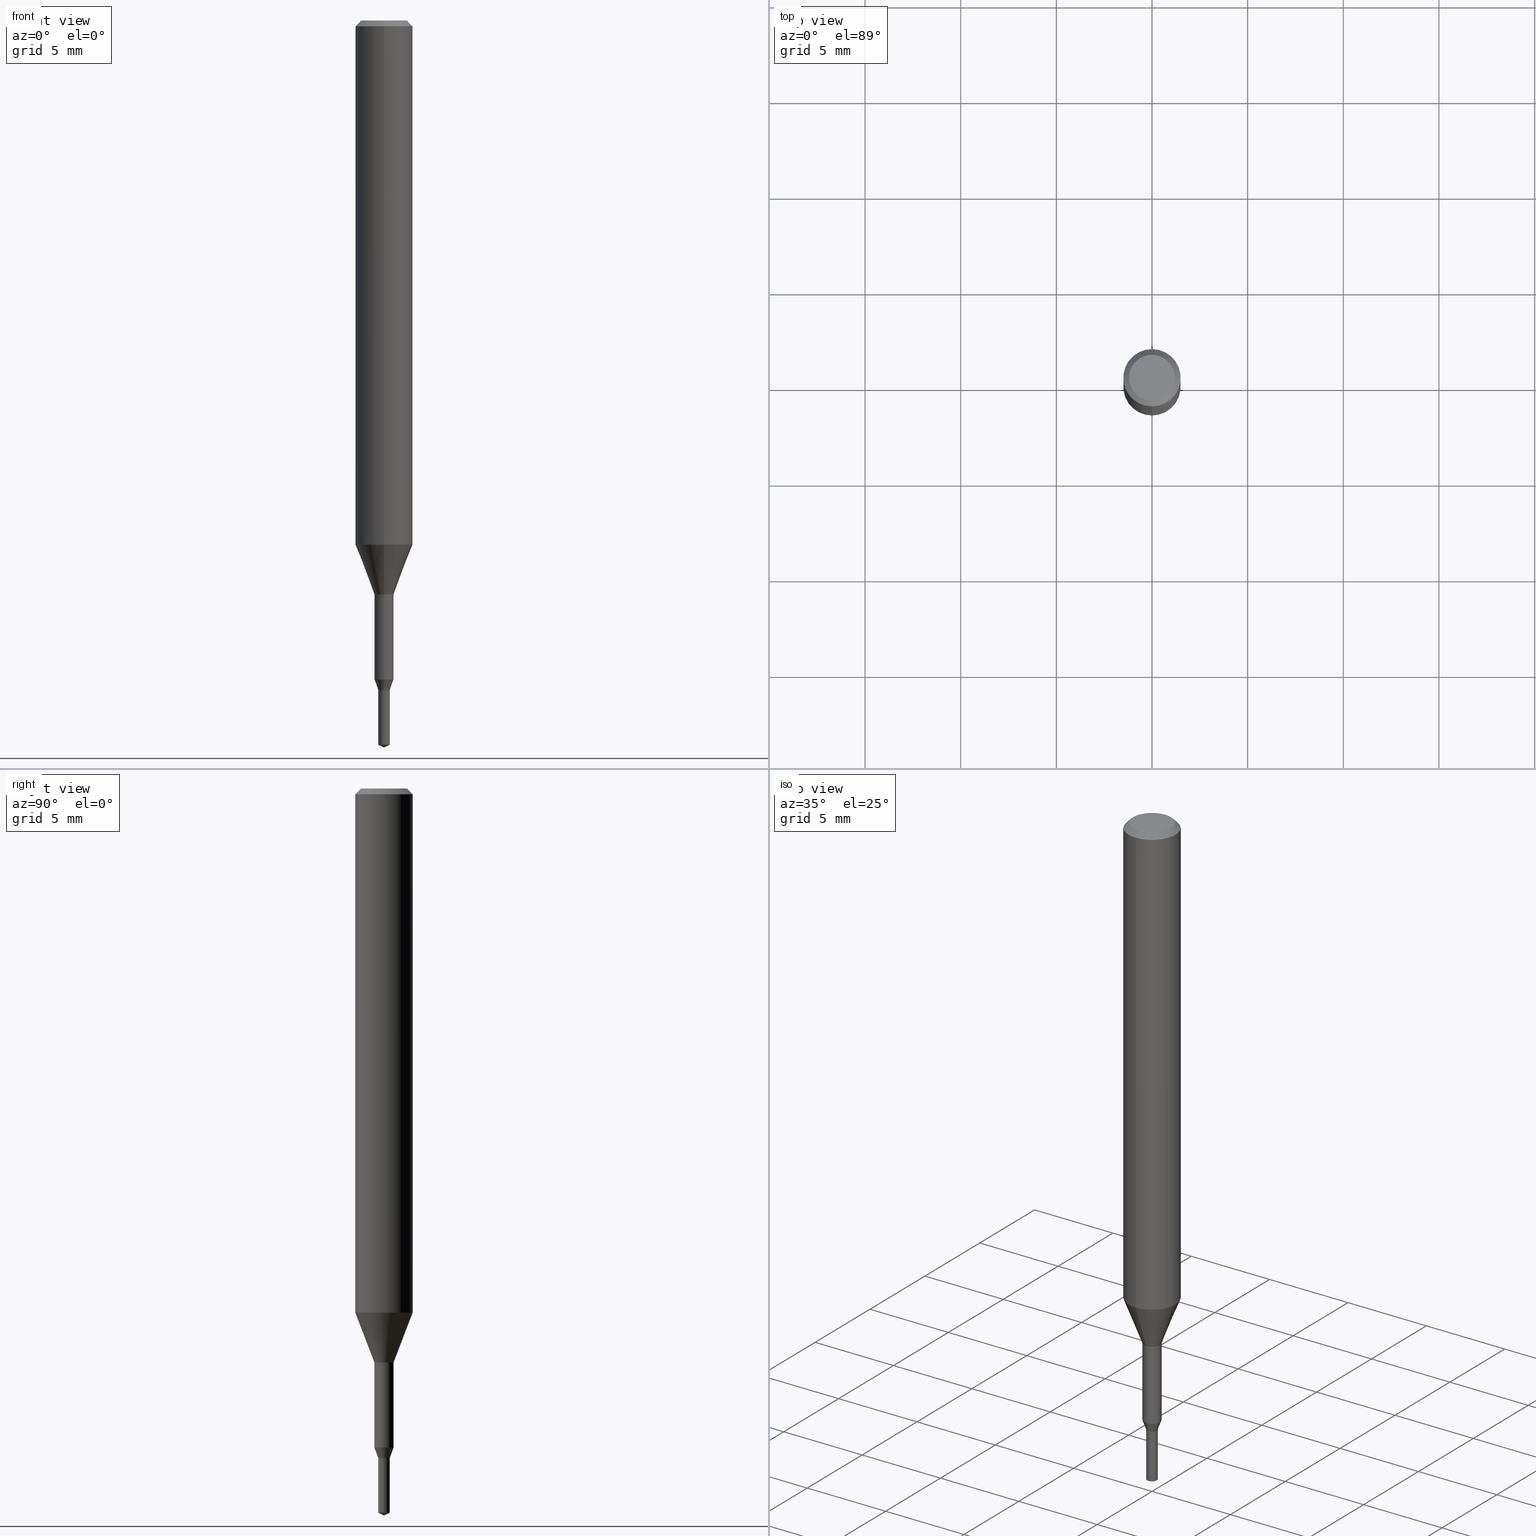
[diagram: canonical four-view strip — front | top / right | iso, engineering-drawing reading convention]
A machine part, canonical four-view strip (front | top / right | iso — engineering-drawing reading convention). The complete STEP part file that produces these views, byte-faithful:
ISO-10303-21;
HEADER;
FILE_DESCRIPTION(('no description'),'unknown implementation level');
FILE_NAME('UTDSX2060-030-Huellk.stp','  ',('CIMSOURCE GmbH'),('CADClick - KiM GmbH - www.kimweb.de'),'unknown preprocess','ACIS','unknown authorization');
FILE_SCHEMA(('automotive_design'));
ENDSEC;
DATA;
#1=MECHANICAL_DESIGN_GEOMETRIC_PRESENTATION_REPRESENTATION(' ',(#14,#15,#16,#17,#18,#19,#20,#21,#22,#23,#24,#25,#26,#27,#28,#29,#30,#31,#32,#33,#34,#35,#36,#37,#38,#39,#40,#41,#42,#43,#44,#45,#46,#47,#48,#49,#50,#51,#52,#53,#54,#55,#56,#57,#58,#59,#60,#61,#62,#63,#64,#65,#66,#67,#68,#69,#70,#71,#72,#73,#74,#75,#76,#77,#78,#79,#80,#81,#82,#83,#84,#85,#86,#87,#88,#89,#90,#91,#92),#10);
#2=PRODUCT_DEFINITION_CONTEXT('',#93,'design');
#3=APPLICATION_PROTOCOL_DEFINITION('INTERNATIONAL STANDARD','automotive_design',1994,#93);
#4=PRODUCT_CATEGORY_RELATIONSHIP('NONE','NONE',#94,#95);
#5=SHAPE_DEFINITION_REPRESENTATION(#96,#97);
#6=PRODUCT_DEFINITION_CONTEXT('',#98,'design');
#7=APPLICATION_PROTOCOL_DEFINITION('INTERNATIONAL STANDARD','automotive_design',1994,#98);
#8=PRODUCT_CATEGORY_RELATIONSHIP('NONE','NONE',#99,#100);
#9=SHAPE_DEFINITION_REPRESENTATION(#101,#102);
#10= (GEOMETRIC_REPRESENTATION_CONTEXT(3)GLOBAL_UNCERTAINTY_ASSIGNED_CONTEXT((#105))GLOBAL_UNIT_ASSIGNED_CONTEXT((#107,#108,#109))REPRESENTATION_CONTEXT('NONE','WORKSPACE'));
#14=STYLED_ITEM('',(#111),#112);
#15=STYLED_ITEM('',(#113),#114);
#16=STYLED_ITEM('',(#115),#116);
#17=STYLED_ITEM('',(#117),#118);
#18=STYLED_ITEM('',(#119),#120);
#19=STYLED_ITEM('',(#121),#122);
#20=STYLED_ITEM('',(#123),#124);
#21=STYLED_ITEM('',(#125),#126);
#22=STYLED_ITEM('',(#127),#128);
#23=STYLED_ITEM('',(#129),#130);
#24=STYLED_ITEM('',(#131),#132);
#25=STYLED_ITEM('',(#133),#134);
#26=STYLED_ITEM('',(#135),#136);
#27=STYLED_ITEM('',(#137),#138);
#28=STYLED_ITEM('',(#139),#140);
#29=STYLED_ITEM('',(#141),#142);
#30=STYLED_ITEM('',(#143),#144);
#31=STYLED_ITEM('',(#145),#146);
#32=STYLED_ITEM('',(#147),#148);
#33=STYLED_ITEM('',(#149),#150);
#34=STYLED_ITEM('',(#151),#152);
#35=STYLED_ITEM('',(#153),#154);
#36=STYLED_ITEM('',(#155),#156);
#37=STYLED_ITEM('',(#157),#158);
#38=STYLED_ITEM('',(#159),#160);
#39=STYLED_ITEM('',(#161),#162);
#40=STYLED_ITEM('',(#163),#164);
#41=STYLED_ITEM('',(#165),#166);
#42=STYLED_ITEM('',(#167),#168);
#43=STYLED_ITEM('',(#169),#170);
#44=STYLED_ITEM('',(#171),#172);
#45=STYLED_ITEM('',(#173),#174);
#46=STYLED_ITEM('',(#175),#176);
#47=STYLED_ITEM('',(#177),#178);
#48=STYLED_ITEM('',(#179),#180);
#49=STYLED_ITEM('',(#181),#182);
#50=STYLED_ITEM('',(#183),#184);
#51=STYLED_ITEM('',(#185),#186);
#52=STYLED_ITEM('',(#187),#188);
#53=STYLED_ITEM('',(#189),#190);
#54=STYLED_ITEM('',(#191),#192);
#55=STYLED_ITEM('',(#193),#194);
#56=STYLED_ITEM('',(#195),#196);
#57=STYLED_ITEM('',(#197),#198);
#58=STYLED_ITEM('',(#199),#200);
#59=STYLED_ITEM('',(#201),#202);
#60=STYLED_ITEM('',(#203),#204);
#61=STYLED_ITEM('',(#205),#206);
#62=STYLED_ITEM('',(#207),#208);
#63=STYLED_ITEM('',(#209),#210);
#64=STYLED_ITEM('',(#211),#212);
#65=STYLED_ITEM('',(#213),#214);
#66=STYLED_ITEM('',(#215),#216);
#67=STYLED_ITEM('',(#217),#218);
#68=STYLED_ITEM('',(#219),#220);
#69=STYLED_ITEM('',(#221),#222);
#70=STYLED_ITEM('',(#223),#224);
#71=STYLED_ITEM('',(#225),#226);
#72=STYLED_ITEM('',(#227),#228);
#73=STYLED_ITEM('',(#229),#230);
#74=STYLED_ITEM('',(#231),#232);
#75=STYLED_ITEM('',(#233),#234);
#76=STYLED_ITEM('',(#235),#236);
#77=STYLED_ITEM('',(#237),#238);
#78=STYLED_ITEM('',(#239),#240);
#79=STYLED_ITEM('',(#241),#242);
#80=STYLED_ITEM('',(#243),#244);
#81=STYLED_ITEM('',(#245),#246);
#82=STYLED_ITEM('',(#247),#248);
#83=STYLED_ITEM('',(#249),#250);
#84=STYLED_ITEM('',(#251),#252);
#85=STYLED_ITEM('',(#253),#254);
#86=STYLED_ITEM('',(#255),#256);
#87=STYLED_ITEM('',(#257),#258);
#88=STYLED_ITEM('',(#259),#260);
#89=STYLED_ITEM('',(#261),#262);
#90=STYLED_ITEM('',(#263),#264);
#91=STYLED_ITEM('',(#265),#266);
#92=STYLED_ITEM('',(#267),#268);
#93=APPLICATION_CONTEXT(' ');
#94=PRODUCT_CATEGORY('part','NONE');
#95=PRODUCT_RELATED_PRODUCT_CATEGORY('detail',' ',(#269));
#96=PRODUCT_DEFINITION_SHAPE('NONE','NONE',#270);
#97=ADVANCED_BREP_SHAPE_REPRESENTATION('1',(#190,#271),#10);
#98=APPLICATION_CONTEXT(' ');
#99=PRODUCT_CATEGORY('part','NONE');
#100=PRODUCT_RELATED_PRODUCT_CATEGORY('detail',' ',(#272));
#101=PRODUCT_DEFINITION_SHAPE('NONE','NONE',#273);
#102=ADVANCED_BREP_SHAPE_REPRESENTATION('2',(#268,#274),#10);
#105=UNCERTAINTY_MEASURE_WITH_UNIT(LENGTH_MEASURE(1.0E-006),#107,'','');
#107= (CONVERSION_BASED_UNIT('MILLIMETRE',#277)LENGTH_UNIT()NAMED_UNIT(#280));
#108= (NAMED_UNIT(#282)PLANE_ANGLE_UNIT()SI_UNIT($,.RADIAN.));
#109= (NAMED_UNIT(#282)SOLID_ANGLE_UNIT()SI_UNIT($,.STERADIAN.));
#111=PRESENTATION_STYLE_ASSIGNMENT((#288));
#112=ADVANCED_FACE('',(#289),#290,.T.);
#113=PRESENTATION_STYLE_ASSIGNMENT((#291));
#114=EDGE_CURVE('',#172,#206,#292,.T.);
#115=PRESENTATION_STYLE_ASSIGNMENT((#293));
#116=ADVANCED_FACE('',(#294),#295,.T.);
#117=PRESENTATION_STYLE_ASSIGNMENT((#296));
#118=EDGE_CURVE('',#138,#244,#297,.T.);
#119=PRESENTATION_STYLE_ASSIGNMENT((#298));
#120=ADVANCED_FACE('',(#299),#300,.T.);
#121=PRESENTATION_STYLE_ASSIGNMENT((#301));
#122=EDGE_CURVE('',#242,#158,#302,.T.);
#123=PRESENTATION_STYLE_ASSIGNMENT((#303));
#124=EDGE_CURVE('',#206,#166,#304,.T.);
#125=PRESENTATION_STYLE_ASSIGNMENT((#305));
#126=VERTEX_POINT('',#306);
#127=PRESENTATION_STYLE_ASSIGNMENT((#307));
#128=EDGE_CURVE('',#132,#172,#308,.T.);
#129=PRESENTATION_STYLE_ASSIGNMENT((#309));
#130=EDGE_CURVE('',#200,#258,#310,.T.);
#131=PRESENTATION_STYLE_ASSIGNMENT((#311));
#132=VERTEX_POINT('',#312);
#133=PRESENTATION_STYLE_ASSIGNMENT((#313));
#134=ADVANCED_FACE('',(#314),#315,.T.);
#135=PRESENTATION_STYLE_ASSIGNMENT((#316));
#136=EDGE_CURVE('',#206,#172,#317,.T.);
#137=PRESENTATION_STYLE_ASSIGNMENT((#318));
#138=VERTEX_POINT('',#319);
#139=PRESENTATION_STYLE_ASSIGNMENT((#320));
#140=VERTEX_POINT('',#321);
#141=PRESENTATION_STYLE_ASSIGNMENT((#322));
#142=EDGE_CURVE('',#214,#252,#323,.T.);
#143=PRESENTATION_STYLE_ASSIGNMENT((#324));
#144=EDGE_CURVE('',#214,#198,#325,.T.);
#145=PRESENTATION_STYLE_ASSIGNMENT((#326));
#146=EDGE_CURVE('',#172,#138,#327,.T.);
#147=PRESENTATION_STYLE_ASSIGNMENT((#328));
#148=EDGE_CURVE('',#182,#258,#329,.T.);
#149=PRESENTATION_STYLE_ASSIGNMENT((#330));
#150=ADVANCED_FACE('',(#331),#332,.T.);
#151=PRESENTATION_STYLE_ASSIGNMENT((#333));
#152=EDGE_CURVE('',#252,#238,#334,.T.);
#153=PRESENTATION_STYLE_ASSIGNMENT((#335));
#154=VERTEX_POINT('',#336);
#155=PRESENTATION_STYLE_ASSIGNMENT((#337));
#156=EDGE_CURVE('',#126,#200,#338,.T.);
#157=PRESENTATION_STYLE_ASSIGNMENT((#339));
#158=VERTEX_POINT('',#340);
#159=PRESENTATION_STYLE_ASSIGNMENT((#341));
#160=ADVANCED_FACE('',(#342),#343,.T.);
#161=PRESENTATION_STYLE_ASSIGNMENT((#344));
#162=EDGE_CURVE('',#198,#154,#345,.T.);
#163=PRESENTATION_STYLE_ASSIGNMENT((#346));
#164=EDGE_CURVE('',#192,#214,#347,.T.);
#165=PRESENTATION_STYLE_ASSIGNMENT((#348));
#166=VERTEX_POINT('',#349);
#167=PRESENTATION_STYLE_ASSIGNMENT((#350));
#168=EDGE_CURVE('',#154,#192,#351,.T.);
#169=PRESENTATION_STYLE_ASSIGNMENT((#352));
#170=ADVANCED_FACE('',(#353),#354,.T.);
#171=PRESENTATION_STYLE_ASSIGNMENT((#355));
#172=VERTEX_POINT('',#356);
#173=PRESENTATION_STYLE_ASSIGNMENT((#357));
#174=EDGE_CURVE('',#154,#140,#358,.T.);
#175=PRESENTATION_STYLE_ASSIGNMENT((#359));
#176=VERTEX_POINT('',#360);
#177=PRESENTATION_STYLE_ASSIGNMENT((#361));
#178=ADVANCED_FACE('',(#362),#363,.T.);
#179=PRESENTATION_STYLE_ASSIGNMENT((#364));
#180=ADVANCED_FACE('',(#365),#366,.T.);
#181=PRESENTATION_STYLE_ASSIGNMENT((#367));
#182=VERTEX_POINT('',#368);
#183=PRESENTATION_STYLE_ASSIGNMENT((#369));
#184=VERTEX_POINT('',#370);
#185=PRESENTATION_STYLE_ASSIGNMENT((#371));
#186=EDGE_CURVE('',#238,#198,#372,.T.);
#187=PRESENTATION_STYLE_ASSIGNMENT((#373));
#188=EDGE_CURVE('',#166,#132,#374,.T.);
#189=PRESENTATION_STYLE_ASSIGNMENT((#375));
#190=MANIFOLD_SOLID_BREP('1',#376);
#191=PRESENTATION_STYLE_ASSIGNMENT((#377));
#192=VERTEX_POINT('',#378);
#193=PRESENTATION_STYLE_ASSIGNMENT((#379));
#194=ADVANCED_FACE('',(#380),#381,.T.);
#195=PRESENTATION_STYLE_ASSIGNMENT((#382));
#196=EDGE_CURVE('',#126,#176,#383,.T.);
#197=PRESENTATION_STYLE_ASSIGNMENT((#384));
#198=VERTEX_POINT('',#385);
#199=PRESENTATION_STYLE_ASSIGNMENT((#386));
#200=VERTEX_POINT('',#387);
#201=PRESENTATION_STYLE_ASSIGNMENT((#388));
#202=ADVANCED_FACE('',(#389),#390,.T.);
#203=PRESENTATION_STYLE_ASSIGNMENT((#391));
#204=EDGE_CURVE('',#176,#126,#392,.T.);
#205=PRESENTATION_STYLE_ASSIGNMENT((#393));
#206=VERTEX_POINT('',#394);
#207=PRESENTATION_STYLE_ASSIGNMENT((#395));
#208=ADVANCED_FACE('',(#396),#397,.T.);
#209=PRESENTATION_STYLE_ASSIGNMENT((#398));
#210=EDGE_CURVE('',#244,#138,#399,.T.);
#211=PRESENTATION_STYLE_ASSIGNMENT((#400));
#212=EDGE_CURVE('',#140,#192,#401,.T.);
#213=PRESENTATION_STYLE_ASSIGNMENT((#402));
#214=VERTEX_POINT('',#403);
#215=PRESENTATION_STYLE_ASSIGNMENT((#404));
#216=ADVANCED_FACE('',(#405),#406,.T.);
#217=PRESENTATION_STYLE_ASSIGNMENT((#407));
#218=ADVANCED_FACE('',(#408),#409,.T.);
#219=PRESENTATION_STYLE_ASSIGNMENT((#410));
#220=EDGE_CURVE('',#184,#176,#411,.T.);
#221=PRESENTATION_STYLE_ASSIGNMENT((#412));
#222=EDGE_CURVE('',#184,#200,#413,.T.);
#223=PRESENTATION_STYLE_ASSIGNMENT((#414));
#224=EDGE_CURVE('',#258,#158,#415,.T.);
#225=PRESENTATION_STYLE_ASSIGNMENT((#416));
#226=EDGE_CURVE('',#182,#184,#417,.T.);
#227=PRESENTATION_STYLE_ASSIGNMENT((#418));
#228=EDGE_CURVE('',#198,#214,#419,.T.);
#229=PRESENTATION_STYLE_ASSIGNMENT((#420));
#230=EDGE_CURVE('',#238,#252,#421,.T.);
#231=PRESENTATION_STYLE_ASSIGNMENT((#422));
#232=EDGE_CURVE('',#200,#184,#423,.T.);
#233=PRESENTATION_STYLE_ASSIGNMENT((#424));
#234=ADVANCED_FACE('',(#425),#426,.T.);
#235=PRESENTATION_STYLE_ASSIGNMENT((#427));
#236=EDGE_CURVE('',#242,#182,#428,.T.);
#237=PRESENTATION_STYLE_ASSIGNMENT((#429));
#238=VERTEX_POINT('',#430);
#239=PRESENTATION_STYLE_ASSIGNMENT((#431));
#240=EDGE_CURVE('',#244,#206,#432,.T.);
#241=PRESENTATION_STYLE_ASSIGNMENT((#433));
#242=VERTEX_POINT('',#434);
#243=PRESENTATION_STYLE_ASSIGNMENT((#435));
#244=VERTEX_POINT('',#436);
#245=PRESENTATION_STYLE_ASSIGNMENT((#437));
#246=EDGE_CURVE('',#158,#242,#438,.T.);
#247=PRESENTATION_STYLE_ASSIGNMENT((#439));
#248=EDGE_CURVE('',#258,#182,#440,.T.);
#249=PRESENTATION_STYLE_ASSIGNMENT((#441));
#250=EDGE_CURVE('',#132,#166,#442,.T.);
#251=PRESENTATION_STYLE_ASSIGNMENT((#443));
#252=VERTEX_POINT('',#444);
#253=PRESENTATION_STYLE_ASSIGNMENT((#445));
#254=ADVANCED_FACE('',(#446),#447,.T.);
#255=PRESENTATION_STYLE_ASSIGNMENT((#448));
#256=ADVANCED_FACE('',(#449,#450),#451,.T.);
#257=PRESENTATION_STYLE_ASSIGNMENT((#452));
#258=VERTEX_POINT('',#453);
#259=PRESENTATION_STYLE_ASSIGNMENT((#454));
#260=ADVANCED_FACE('',(#455),#456,.T.);
#261=PRESENTATION_STYLE_ASSIGNMENT((#457));
#262=ADVANCED_FACE('',(#458),#459,.T.);
#263=PRESENTATION_STYLE_ASSIGNMENT((#460));
#264=EDGE_CURVE('',#192,#154,#461,.T.);
#265=PRESENTATION_STYLE_ASSIGNMENT((#462));
#266=ADVANCED_FACE('',(#463),#464,.T.);
#267=PRESENTATION_STYLE_ASSIGNMENT((#465));
#268=MANIFOLD_SOLID_BREP('2',#466);
#269=PRODUCT('1','1','PART-1-DESC',(#467));
#270=PRODUCT_DEFINITION('NONE','NONE',#468,#2);
#271=AXIS2_PLACEMENT_3D('',#469,#470,#471);
#272=PRODUCT('2','2','PART-2-DESC',(#472));
#273=PRODUCT_DEFINITION('NONE','NONE',#473,#6);
#274=AXIS2_PLACEMENT_3D('',#474,#475,#476);
#277=LENGTH_MEASURE_WITH_UNIT(LENGTH_MEASURE(1.0),#477);
#280=DIMENSIONAL_EXPONENTS(1.0,0.0,0.0,0.0,0.0,0.0,0.0);
#282=DIMENSIONAL_EXPONENTS(0.0,0.0,0.0,0.0,0.0,0.0,0.0);
#288=SURFACE_STYLE_USAGE(.BOTH.,#478);
#289=FACE_OUTER_BOUND('',#479,.T.);
#290=CONICAL_SURFACE('',#480,1.35,0.785398163397447);
#291=CURVE_STYLE('',#481,POSITIVE_LENGTH_MEASURE(1.0E-006),#482);
#292=CIRCLE('',#483,0.49995);
#293=SURFACE_STYLE_USAGE(.BOTH.,#484);
#294=FACE_OUTER_BOUND('',#485,.T.);
#295=CONICAL_SURFACE('',#486,1.35,0.785398163397447);
#296=CURVE_STYLE('',#487,POSITIVE_LENGTH_MEASURE(1.0E-006),#488);
#297=CIRCLE('',#489,0.49995);
#298=SURFACE_STYLE_USAGE(.BOTH.,#490);
#299=FACE_OUTER_BOUND('',#491,.T.);
#300=CYLINDRICAL_SURFACE('',#492,0.3);
#301=CURVE_STYLE('',#493,POSITIVE_LENGTH_MEASURE(1.0E-006),#494);
#302=CIRCLE('',#495,1.2);
#303=CURVE_STYLE('',#496,POSITIVE_LENGTH_MEASURE(1.0E-006),#497);
#304=LINE('',#498,#499);
#305=POINT_STYLE(' ',#500,POSITIVE_LENGTH_MEASURE(1.0E-006),#501);
#306=CARTESIAN_POINT('',(6.12303176911189E-017,-0.5,-30.0));
#307=CURVE_STYLE('',#502,POSITIVE_LENGTH_MEASURE(1.0E-006),#503);
#308=LINE('',#504,#505);
#309=CURVE_STYLE('',#506,POSITIVE_LENGTH_MEASURE(1.0E-006),#507);
#310=LINE('',#508,#509);
#311=POINT_STYLE(' ',#510,POSITIVE_LENGTH_MEASURE(1.0E-006),#511);
#312=CARTESIAN_POINT('',(3.67426507246977E-017,-0.300036420765027,-34.9999));
#313=SURFACE_STYLE_USAGE(.BOTH.,#512);
#314=FACE_OUTER_BOUND('',#513,.T.);
#315=PLANE('',#514);
#316=CURVE_STYLE('',#515,POSITIVE_LENGTH_MEASURE(1.0E-006),#516);
#317=CIRCLE('',#517,0.49995);
#318=POINT_STYLE(' ',#518,POSITIVE_LENGTH_MEASURE(1.0E-006),#519);
#319=CARTESIAN_POINT('',(6.12241946593498E-017,-0.49995,-30.0));
#320=POINT_STYLE(' ',#520,POSITIVE_LENGTH_MEASURE(1.0E-006),#521);
#321=CARTESIAN_POINT('',(0.0,0.0,-38.0));
#322=CURVE_STYLE('',#522,POSITIVE_LENGTH_MEASURE(1.0E-006),#523);
#323=LINE('',#524,#525);
#324=CURVE_STYLE('',#526,POSITIVE_LENGTH_MEASURE(1.0E-006),#527);
#325=CIRCLE('',#528,0.3);
#326=CURVE_STYLE('',#529,POSITIVE_LENGTH_MEASURE(1.0E-006),#530);
#327=LINE('',#531,#532);
#328=CURVE_STYLE('',#533,POSITIVE_LENGTH_MEASURE(1.0E-006),#534);
#329=CIRCLE('',#535,1.5);
#330=SURFACE_STYLE_USAGE(.BOTH.,#536);
#331=FACE_OUTER_BOUND('',#537,.T.);
#332=CONICAL_SURFACE('',#538,0.15,1.13446400680488);
#333=CURVE_STYLE('',#539,POSITIVE_LENGTH_MEASURE(1.0E-006),#540);
#334=CIRCLE('',#541,0.301036429872495);
#335=POINT_STYLE(' ',#542,POSITIVE_LENGTH_MEASURE(1.0E-006),#543);
#336=CARTESIAN_POINT('',(-0.3,0.0,-37.8601077));
#337=CURVE_STYLE('',#544,POSITIVE_LENGTH_MEASURE(1.0E-006),#545);
#338=LINE('',#546,#547);
#339=POINT_STYLE(' ',#548,POSITIVE_LENGTH_MEASURE(1.0E-006),#549);
#340=CARTESIAN_POINT('',(1.46952762458685E-016,-1.2,0.0));
#341=SURFACE_STYLE_USAGE(.BOTH.,#550);
#342=FACE_OUTER_BOUND('',#551,.T.);
#343=CYLINDRICAL_SURFACE('',#552,0.3);
#344=CURVE_STYLE('',#553,POSITIVE_LENGTH_MEASURE(1.0E-006),#554);
#345=LINE('',#555,#556);
#346=CURVE_STYLE('',#557,POSITIVE_LENGTH_MEASURE(1.0E-006),#558);
#347=LINE('',#559,#560);
#348=POINT_STYLE(' ',#561,POSITIVE_LENGTH_MEASURE(1.0E-006),#562);
#349=CARTESIAN_POINT('',(0.0,0.300036420765027,-34.9999));
#350=CURVE_STYLE('',#563,POSITIVE_LENGTH_MEASURE(1.0E-006),#564);
#351=CIRCLE('',#565,0.3);
#352=SURFACE_STYLE_USAGE(.BOTH.,#566);
#353=FACE_OUTER_BOUND('',#567,.T.);
#354=CONICAL_SURFACE('',#568,1.0,0.366530581623394);
#355=POINT_STYLE(' ',#569,POSITIVE_LENGTH_MEASURE(1.0E-006),#570);
#356=CARTESIAN_POINT('',(6.12241946593498E-017,-0.49995,-34.451));
#357=CURVE_STYLE('',#571,POSITIVE_LENGTH_MEASURE(1.0E-006),#572);
#358=LINE('',#573,#574);
#359=POINT_STYLE(' ',#575,POSITIVE_LENGTH_MEASURE(1.0E-006),#576);
#360=CARTESIAN_POINT('',(0.0,0.5,-30.0));
#361=SURFACE_STYLE_USAGE(.BOTH.,#577);
#362=FACE_OUTER_BOUND('',#578,.T.);
#363=CONICAL_SURFACE('',#579,0.300518214936248,1.47460900891413);
#364=SURFACE_STYLE_USAGE(.BOTH.,#580);
#365=FACE_OUTER_BOUND('',#581,.T.);
#366=CYLINDRICAL_SURFACE('',#582,1.5);
#367=POINT_STYLE(' ',#583,POSITIVE_LENGTH_MEASURE(1.0E-006),#584);
#368=CARTESIAN_POINT('',(0.0,1.5,-0.300000000000001));
#369=POINT_STYLE(' ',#585,POSITIVE_LENGTH_MEASURE(1.0E-006),#586);
#370=CARTESIAN_POINT('',(0.0,1.5,-27.395));
#371=CURVE_STYLE('',#587,POSITIVE_LENGTH_MEASURE(1.0E-006),#588);
#372=LINE('',#589,#590);
#373=CURVE_STYLE('',#591,POSITIVE_LENGTH_MEASURE(1.0E-006),#592);
#374=CIRCLE('',#593,0.300036420765027);
#375=SURFACE_STYLE_USAGE(.BOTH.,#594);
#376=CLOSED_SHELL('',(#234,#208,#254,#180,#112,#218,#116,#266,#170,#256,#262,#216,#134));
#377=POINT_STYLE(' ',#595,POSITIVE_LENGTH_MEASURE(1.0E-006),#596);
#378=CARTESIAN_POINT('',(0.3,3.67381906146713E-017,-37.8601077));
#379=SURFACE_STYLE_USAGE(.BOTH.,#597);
#380=FACE_OUTER_BOUND('',#598,.T.);
#381=PLANE('',#599);
#382=CURVE_STYLE('',#600,POSITIVE_LENGTH_MEASURE(1.0E-006),#601);
#383=CIRCLE('',#602,0.5);
#384=POINT_STYLE(' ',#603,POSITIVE_LENGTH_MEASURE(1.0E-006),#604);
#385=CARTESIAN_POINT('',(-0.3,0.0,-35.0));
#386=POINT_STYLE(' ',#605,POSITIVE_LENGTH_MEASURE(1.0E-006),#606);
#387=CARTESIAN_POINT('',(1.83690953073357E-016,-1.5,-27.395));
#388=SURFACE_STYLE_USAGE(.BOTH.,#607);
#389=FACE_OUTER_BOUND('',#608,.T.);
#390=CONICAL_SURFACE('',#609,0.15,1.13446400680488);
#391=CURVE_STYLE('',#610,POSITIVE_LENGTH_MEASURE(1.0E-006),#611);
#392=CIRCLE('',#612,0.5);
#393=POINT_STYLE(' ',#613,POSITIVE_LENGTH_MEASURE(1.0E-006),#614);
#394=CARTESIAN_POINT('',(0.0,0.49995,-34.451));
#395=SURFACE_STYLE_USAGE(.BOTH.,#615);
#396=FACE_OUTER_BOUND('',#616,.T.);
#397=CYLINDRICAL_SURFACE('',#617,0.49995);
#398=CURVE_STYLE('',#618,POSITIVE_LENGTH_MEASURE(1.0E-006),#619);
#399=CIRCLE('',#620,0.49995);
#400=CURVE_STYLE('',#621,POSITIVE_LENGTH_MEASURE(1.0E-006),#622);
#401=LINE('',#623,#624);
#402=POINT_STYLE(' ',#625,POSITIVE_LENGTH_MEASURE(1.0E-006),#626);
#403=CARTESIAN_POINT('',(0.3,3.67381906146713E-017,-35.0));
#404=SURFACE_STYLE_USAGE(.BOTH.,#627);
#405=FACE_OUTER_BOUND('',#628,.T.);
#406=CONICAL_SURFACE('',#629,0.399993210382514,0.349275478010317);
#407=SURFACE_STYLE_USAGE(.BOTH.,#630);
#408=FACE_OUTER_BOUND('',#631,.T.);
#409=PLANE('',#632);
#410=CURVE_STYLE('',#633,POSITIVE_LENGTH_MEASURE(1.0E-006),#634);
#411=LINE('',#635,#636);
#412=CURVE_STYLE('',#637,POSITIVE_LENGTH_MEASURE(1.0E-006),#638);
#413=CIRCLE('',#639,1.5);
#414=CURVE_STYLE('',#640,POSITIVE_LENGTH_MEASURE(1.0E-006),#641);
#415=LINE('',#642,#643);
#416=CURVE_STYLE('',#644,POSITIVE_LENGTH_MEASURE(1.0E-006),#645);
#417=LINE('',#646,#647);
#418=CURVE_STYLE('',#648,POSITIVE_LENGTH_MEASURE(1.0E-006),#649);
#419=CIRCLE('',#650,0.3);
#420=CURVE_STYLE('',#651,POSITIVE_LENGTH_MEASURE(1.0E-006),#652);
#421=CIRCLE('',#653,0.301036429872495);
#422=CURVE_STYLE('',#654,POSITIVE_LENGTH_MEASURE(1.0E-006),#655);
#423=CIRCLE('',#656,1.5);
#424=SURFACE_STYLE_USAGE(.BOTH.,#657);
#425=FACE_OUTER_BOUND('',#658,.T.);
#426=CONICAL_SURFACE('',#659,0.399993210382514,0.349275478010317);
#427=CURVE_STYLE('',#660,POSITIVE_LENGTH_MEASURE(1.0E-006),#661);
#428=LINE('',#662,#663);
#429=POINT_STYLE(' ',#664,POSITIVE_LENGTH_MEASURE(1.0E-006),#665);
#430=CARTESIAN_POINT('',(-0.301036429872495,0.0,-34.9999));
#431=CURVE_STYLE('',#666,POSITIVE_LENGTH_MEASURE(1.0E-006),#667);
#432=LINE('',#668,#669);
#433=POINT_STYLE(' ',#670,POSITIVE_LENGTH_MEASURE(1.0E-006),#671);
#434=CARTESIAN_POINT('',(0.0,1.2,0.0));
#435=POINT_STYLE(' ',#672,POSITIVE_LENGTH_MEASURE(1.0E-006),#673);
#436=CARTESIAN_POINT('',(0.0,0.49995,-30.0));
#437=CURVE_STYLE('',#674,POSITIVE_LENGTH_MEASURE(1.0E-006),#675);
#438=CIRCLE('',#676,1.2);
#439=CURVE_STYLE('',#677,POSITIVE_LENGTH_MEASURE(1.0E-006),#678);
#440=CIRCLE('',#679,1.5);
#441=CURVE_STYLE('',#680,POSITIVE_LENGTH_MEASURE(1.0E-006),#681);
#442=CIRCLE('',#682,0.300036420765027);
#443=POINT_STYLE(' ',#683,POSITIVE_LENGTH_MEASURE(1.0E-006),#684);
#444=CARTESIAN_POINT('',(0.301036429872495,3.68651124753862E-017,-34.9999));
#445=SURFACE_STYLE_USAGE(.BOTH.,#685);
#446=FACE_OUTER_BOUND('',#686,.T.);
#447=CONICAL_SURFACE('',#687,1.0,0.366530581623394);
#448=SURFACE_STYLE_USAGE(.BOTH.,#688);
#449=FACE_BOUND('',#689,.T.);
#450=FACE_OUTER_BOUND('',#690,.T.);
#451=PLANE('',#691);
#452=POINT_STYLE(' ',#692,POSITIVE_LENGTH_MEASURE(1.0E-006),#693);
#453=CARTESIAN_POINT('',(1.83690953073357E-016,-1.5,-0.300000000000001));
#454=SURFACE_STYLE_USAGE(.BOTH.,#694);
#455=FACE_OUTER_BOUND('',#695,.T.);
#456=CONICAL_SURFACE('',#696,0.300518214936248,1.47460900891413);
#457=SURFACE_STYLE_USAGE(.BOTH.,#697);
#458=FACE_OUTER_BOUND('',#698,.T.);
#459=CYLINDRICAL_SURFACE('',#699,0.49995);
#460=CURVE_STYLE('',#700,POSITIVE_LENGTH_MEASURE(1.0E-006),#701);
#461=CIRCLE('',#702,0.3);
#462=SURFACE_STYLE_USAGE(.BOTH.,#703);
#463=FACE_OUTER_BOUND('',#704,.T.);
#464=CYLINDRICAL_SURFACE('',#705,1.5);
#465=SURFACE_STYLE_USAGE(.BOTH.,#706);
#466=CLOSED_SHELL('',(#150,#160,#260,#194,#178,#120,#202));
#467=PRODUCT_CONTEXT('',#93,'mechanical');
#468=PRODUCT_DEFINITION_FORMATION_WITH_SPECIFIED_SOURCE(' ','NONE',#269,.NOT_KNOWN.);
#469=CARTESIAN_POINT('',(0.0,0.0,0.0));
#470=DIRECTION('',(0.0,0.0,1.0));
#471=DIRECTION('',(1.0,0.0,0.0));
#472=PRODUCT_CONTEXT('',#98,'mechanical');
#473=PRODUCT_DEFINITION_FORMATION_WITH_SPECIFIED_SOURCE(' ','NONE',#272,.NOT_KNOWN.);
#474=CARTESIAN_POINT('',(0.0,0.0,0.0));
#475=DIRECTION('',(0.0,0.0,1.0));
#476=DIRECTION('',(1.0,0.0,0.0));
#477= (NAMED_UNIT(#280)LENGTH_UNIT()SI_UNIT(.MILLI.,.METRE.));
#478=SURFACE_SIDE_STYLE('',(#708));
#479=EDGE_LOOP('',(#709,#710,#711,#712));
#480=AXIS2_PLACEMENT_3D('',#713,#714,#715);
#481=DRAUGHTING_PRE_DEFINED_CURVE_FONT('continuous');
#482=COLOUR_RGB('',0.498039215803146,0.498039215803146,0.498039215803146);
#483=AXIS2_PLACEMENT_3D('',#716,#717,#718);
#484=SURFACE_SIDE_STYLE('',(#719));
#485=EDGE_LOOP('',(#720,#721,#722,#723));
#486=AXIS2_PLACEMENT_3D('',#724,#725,#726);
#487=DRAUGHTING_PRE_DEFINED_CURVE_FONT('continuous');
#488=COLOUR_RGB('',0.498039215803146,0.498039215803146,0.498039215803146);
#489=AXIS2_PLACEMENT_3D('',#727,#728,#729);
#490=SURFACE_SIDE_STYLE('',(#730));
#491=EDGE_LOOP('',(#731,#732,#733,#734));
#492=AXIS2_PLACEMENT_3D('',#735,#736,#737);
#493=DRAUGHTING_PRE_DEFINED_CURVE_FONT('continuous');
#494=COLOUR_RGB('',0.498039215803146,0.498039215803146,0.498039215803146);
#495=AXIS2_PLACEMENT_3D('',#738,#739,#740);
#496=DRAUGHTING_PRE_DEFINED_CURVE_FONT('continuous');
#497=COLOUR_RGB('',0.498039215803146,0.498039215803146,0.498039215803146);
#498=CARTESIAN_POINT('',(-4.89834226920237E-017,0.399993210382514,-34.72545));
#499=VECTOR('',#741,1.0);
#500=PRE_DEFINED_MARKER('');
#501=COLOUR_RGB('',0.498039215803146,0.498039215803146,0.498039215803146);
#502=DRAUGHTING_PRE_DEFINED_CURVE_FONT('continuous');
#503=COLOUR_RGB('',0.498039215803146,0.498039215803146,0.498039215803146);
#504=CARTESIAN_POINT('',(4.89834226920237E-017,-0.399993210382514,-34.72545));
#505=VECTOR('',#742,1.0);
#506=DRAUGHTING_PRE_DEFINED_CURVE_FONT('continuous');
#507=COLOUR_RGB('',0.498039215803146,0.498039215803146,0.498039215803146);
#508=CARTESIAN_POINT('',(1.83690953073357E-016,-1.5,-13.8475));
#509=VECTOR('',#743,1.0);
#510=PRE_DEFINED_MARKER('');
#511=COLOUR_RGB('',0.498039215803146,0.498039215803146,0.498039215803146);
#512=SURFACE_SIDE_STYLE('',(#744));
#513=EDGE_LOOP('',(#745,#746));
#514=AXIS2_PLACEMENT_3D('',#747,#748,#749);
#515=DRAUGHTING_PRE_DEFINED_CURVE_FONT('continuous');
#516=COLOUR_RGB('',0.498039215803146,0.498039215803146,0.498039215803146);
#517=AXIS2_PLACEMENT_3D('',#750,#751,#752);
#518=PRE_DEFINED_MARKER('');
#519=COLOUR_RGB('',0.498039215803146,0.498039215803146,0.498039215803146);
#520=PRE_DEFINED_MARKER('');
#521=COLOUR_RGB('',0.800000011920929,0.800000011920929,0.800000011920929);
#522=DRAUGHTING_PRE_DEFINED_CURVE_FONT('continuous');
#523=COLOUR_RGB('',0.800000011920929,0.800000011920929,0.800000011920929);
#524=CARTESIAN_POINT('',(0.300518214936248,3.68016515450288E-017,-34.99995));
#525=VECTOR('',#753,1.0);
#526=DRAUGHTING_PRE_DEFINED_CURVE_FONT('continuous');
#527=COLOUR_RGB('',0.800000011920929,0.800000011920929,0.800000011920929);
#528=AXIS2_PLACEMENT_3D('',#754,#755,#756);
#529=DRAUGHTING_PRE_DEFINED_CURVE_FONT('continuous');
#530=COLOUR_RGB('',0.498039215803146,0.498039215803146,0.498039215803146);
#531=CARTESIAN_POINT('',(6.12241946593498E-017,-0.49995,-32.2255));
#532=VECTOR('',#757,1.0);
#533=DRAUGHTING_PRE_DEFINED_CURVE_FONT('continuous');
#534=COLOUR_RGB('',0.498039215803146,0.498039215803146,0.498039215803146);
#535=AXIS2_PLACEMENT_3D('',#758,#759,#760);
#536=SURFACE_SIDE_STYLE('',(#761));
#537=EDGE_LOOP('',(#762,#763,#764));
#538=AXIS2_PLACEMENT_3D('',#765,#766,#767);
#539=DRAUGHTING_PRE_DEFINED_CURVE_FONT('continuous');
#540=COLOUR_RGB('',0.800000011920929,0.800000011920929,0.800000011920929);
#541=AXIS2_PLACEMENT_3D('',#768,#769,#770);
#542=PRE_DEFINED_MARKER('');
#543=COLOUR_RGB('',0.800000011920929,0.800000011920929,0.800000011920929);
#544=DRAUGHTING_PRE_DEFINED_CURVE_FONT('continuous');
#545=COLOUR_RGB('',0.498039215803146,0.498039215803146,0.498039215803146);
#546=CARTESIAN_POINT('',(1.22460635382238E-016,-1.0,-28.6975));
#547=VECTOR('',#771,1.0);
#548=PRE_DEFINED_MARKER('');
#549=COLOUR_RGB('',0.498039215803146,0.498039215803146,0.498039215803146);
#550=SURFACE_SIDE_STYLE('',(#772));
#551=EDGE_LOOP('',(#773,#774,#775,#776));
#552=AXIS2_PLACEMENT_3D('',#777,#778,#779);
#553=DRAUGHTING_PRE_DEFINED_CURVE_FONT('continuous');
#554=COLOUR_RGB('',0.800000011920929,0.800000011920929,0.800000011920929);
#555=CARTESIAN_POINT('',(-0.3,-3.67381906146713E-017,-36.43005385));
#556=VECTOR('',#780,1.0);
#557=DRAUGHTING_PRE_DEFINED_CURVE_FONT('continuous');
#558=COLOUR_RGB('',0.800000011920929,0.800000011920929,0.800000011920929);
#559=CARTESIAN_POINT('',(0.3,3.67381906146713E-017,-36.43005385));
#560=VECTOR('',#781,1.0);
#561=PRE_DEFINED_MARKER('');
#562=COLOUR_RGB('',0.498039215803146,0.498039215803146,0.498039215803146);
#563=DRAUGHTING_PRE_DEFINED_CURVE_FONT('continuous');
#564=COLOUR_RGB('',0.800000011920929,0.800000011920929,0.800000011920929);
#565=AXIS2_PLACEMENT_3D('',#782,#783,#784);
#566=SURFACE_SIDE_STYLE('',(#785));
#567=EDGE_LOOP('',(#786,#787,#788,#789));
#568=AXIS2_PLACEMENT_3D('',#790,#791,#792);
#569=PRE_DEFINED_MARKER('');
#570=COLOUR_RGB('',0.498039215803146,0.498039215803146,0.498039215803146);
#571=DRAUGHTING_PRE_DEFINED_CURVE_FONT('continuous');
#572=COLOUR_RGB('',0.800000011920929,0.800000011920929,0.800000011920929);
#573=CARTESIAN_POINT('',(-0.15,-1.83690953073357E-017,-37.93005385));
#574=VECTOR('',#793,1.0);
#575=PRE_DEFINED_MARKER('');
#576=COLOUR_RGB('',0.498039215803146,0.498039215803146,0.498039215803146);
#577=SURFACE_SIDE_STYLE('',(#794));
#578=EDGE_LOOP('',(#795,#796,#797,#798));
#579=AXIS2_PLACEMENT_3D('',#799,#800,#801);
#580=SURFACE_SIDE_STYLE('',(#802));
#581=EDGE_LOOP('',(#803,#804,#805,#806));
#582=AXIS2_PLACEMENT_3D('',#807,#808,#809);
#583=PRE_DEFINED_MARKER('');
#584=COLOUR_RGB('',0.498039215803146,0.498039215803146,0.498039215803146);
#585=PRE_DEFINED_MARKER('');
#586=COLOUR_RGB('',0.498039215803146,0.498039215803146,0.498039215803146);
#587=DRAUGHTING_PRE_DEFINED_CURVE_FONT('continuous');
#588=COLOUR_RGB('',0.800000011920929,0.800000011920929,0.800000011920929);
#589=CARTESIAN_POINT('',(-0.300518214936248,-3.68016515450288E-017,-34.99995));
#590=VECTOR('',#810,1.0);
#591=DRAUGHTING_PRE_DEFINED_CURVE_FONT('continuous');
#592=COLOUR_RGB('',0.498039215803146,0.498039215803146,0.498039215803146);
#593=AXIS2_PLACEMENT_3D('',#811,#812,#813);
#594=SURFACE_SIDE_STYLE('',(#814));
#595=PRE_DEFINED_MARKER('');
#596=COLOUR_RGB('',0.800000011920929,0.800000011920929,0.800000011920929);
#597=SURFACE_SIDE_STYLE('',(#815));
#598=EDGE_LOOP('',(#816,#817));
#599=AXIS2_PLACEMENT_3D('',#818,#819,#820);
#600=DRAUGHTING_PRE_DEFINED_CURVE_FONT('continuous');
#601=COLOUR_RGB('',0.498039215803146,0.498039215803146,0.498039215803146);
#602=AXIS2_PLACEMENT_3D('',#821,#822,#823);
#603=PRE_DEFINED_MARKER('');
#604=COLOUR_RGB('',0.800000011920929,0.800000011920929,0.800000011920929);
#605=PRE_DEFINED_MARKER('');
#606=COLOUR_RGB('',0.498039215803146,0.498039215803146,0.498039215803146);
#607=SURFACE_SIDE_STYLE('',(#824));
#608=EDGE_LOOP('',(#825,#826,#827));
#609=AXIS2_PLACEMENT_3D('',#828,#829,#830);
#610=DRAUGHTING_PRE_DEFINED_CURVE_FONT('continuous');
#611=COLOUR_RGB('',0.498039215803146,0.498039215803146,0.498039215803146);
#612=AXIS2_PLACEMENT_3D('',#831,#832,#833);
#613=PRE_DEFINED_MARKER('');
#614=COLOUR_RGB('',0.498039215803146,0.498039215803146,0.498039215803146);
#615=SURFACE_SIDE_STYLE('',(#834));
#616=EDGE_LOOP('',(#835,#836,#837,#838));
#617=AXIS2_PLACEMENT_3D('',#839,#840,#841);
#618=DRAUGHTING_PRE_DEFINED_CURVE_FONT('continuous');
#619=COLOUR_RGB('',0.498039215803146,0.498039215803146,0.498039215803146);
#620=AXIS2_PLACEMENT_3D('',#842,#843,#844);
#621=DRAUGHTING_PRE_DEFINED_CURVE_FONT('continuous');
#622=COLOUR_RGB('',0.800000011920929,0.800000011920929,0.800000011920929);
#623=CARTESIAN_POINT('',(0.15,1.83690953073357E-017,-37.93005385));
#624=VECTOR('',#845,1.0);
#625=PRE_DEFINED_MARKER('');
#626=COLOUR_RGB('',0.800000011920929,0.800000011920929,0.800000011920929);
#627=SURFACE_SIDE_STYLE('',(#846));
#628=EDGE_LOOP('',(#847,#848,#849,#850));
#629=AXIS2_PLACEMENT_3D('',#851,#852,#853);
#630=SURFACE_SIDE_STYLE('',(#854));
#631=EDGE_LOOP('',(#855,#856));
#632=AXIS2_PLACEMENT_3D('',#857,#858,#859);
#633=DRAUGHTING_PRE_DEFINED_CURVE_FONT('continuous');
#634=COLOUR_RGB('',0.498039215803146,0.498039215803146,0.498039215803146);
#635=CARTESIAN_POINT('',(-1.22460635382238E-016,1.0,-28.6975));
#636=VECTOR('',#860,1.0);
#637=DRAUGHTING_PRE_DEFINED_CURVE_FONT('continuous');
#638=COLOUR_RGB('',0.498039215803146,0.498039215803146,0.498039215803146);
#639=AXIS2_PLACEMENT_3D('',#861,#862,#863);
#640=DRAUGHTING_PRE_DEFINED_CURVE_FONT('continuous');
#641=COLOUR_RGB('',0.498039215803146,0.498039215803146,0.498039215803146);
#642=CARTESIAN_POINT('',(1.65321857766021E-016,-1.35,-0.150000000000002));
#643=VECTOR('',#864,1.0);
#644=DRAUGHTING_PRE_DEFINED_CURVE_FONT('continuous');
#645=COLOUR_RGB('',0.498039215803146,0.498039215803146,0.498039215803146);
#646=CARTESIAN_POINT('',(-1.83690953073357E-016,1.5,-13.8475));
#647=VECTOR('',#865,1.0);
#648=DRAUGHTING_PRE_DEFINED_CURVE_FONT('continuous');
#649=COLOUR_RGB('',0.800000011920929,0.800000011920929,0.800000011920929);
#650=AXIS2_PLACEMENT_3D('',#866,#867,#868);
#651=DRAUGHTING_PRE_DEFINED_CURVE_FONT('continuous');
#652=COLOUR_RGB('',0.800000011920929,0.800000011920929,0.800000011920929);
#653=AXIS2_PLACEMENT_3D('',#869,#870,#871);
#654=DRAUGHTING_PRE_DEFINED_CURVE_FONT('continuous');
#655=COLOUR_RGB('',0.498039215803146,0.498039215803146,0.498039215803146);
#656=AXIS2_PLACEMENT_3D('',#872,#873,#874);
#657=SURFACE_SIDE_STYLE('',(#875));
#658=EDGE_LOOP('',(#876,#877,#878,#879));
#659=AXIS2_PLACEMENT_3D('',#880,#881,#882);
#660=DRAUGHTING_PRE_DEFINED_CURVE_FONT('continuous');
#661=COLOUR_RGB('',0.498039215803146,0.498039215803146,0.498039215803146);
#662=CARTESIAN_POINT('',(-1.65321857766021E-016,1.35,-0.150000000000002));
#663=VECTOR('',#883,1.0);
#664=PRE_DEFINED_MARKER('');
#665=COLOUR_RGB('',0.800000011920929,0.800000011920929,0.800000011920929);
#666=DRAUGHTING_PRE_DEFINED_CURVE_FONT('continuous');
#667=COLOUR_RGB('',0.498039215803146,0.498039215803146,0.498039215803146);
#668=CARTESIAN_POINT('',(-6.12241946593498E-017,0.49995,-32.2255));
#669=VECTOR('',#884,1.0);
#670=PRE_DEFINED_MARKER('');
#671=COLOUR_RGB('',0.498039215803146,0.498039215803146,0.498039215803146);
#672=PRE_DEFINED_MARKER('');
#673=COLOUR_RGB('',0.498039215803146,0.498039215803146,0.498039215803146);
#674=DRAUGHTING_PRE_DEFINED_CURVE_FONT('continuous');
#675=COLOUR_RGB('',0.498039215803146,0.498039215803146,0.498039215803146);
#676=AXIS2_PLACEMENT_3D('',#885,#886,#887);
#677=DRAUGHTING_PRE_DEFINED_CURVE_FONT('continuous');
#678=COLOUR_RGB('',0.498039215803146,0.498039215803146,0.498039215803146);
#679=AXIS2_PLACEMENT_3D('',#888,#889,#890);
#680=DRAUGHTING_PRE_DEFINED_CURVE_FONT('continuous');
#681=COLOUR_RGB('',0.498039215803146,0.498039215803146,0.498039215803146);
#682=AXIS2_PLACEMENT_3D('',#891,#892,#893);
#683=PRE_DEFINED_MARKER('');
#684=COLOUR_RGB('',0.800000011920929,0.800000011920929,0.800000011920929);
#685=SURFACE_SIDE_STYLE('',(#894));
#686=EDGE_LOOP('',(#895,#896,#897,#898));
#687=AXIS2_PLACEMENT_3D('',#899,#900,#901);
#688=SURFACE_SIDE_STYLE('',(#902));
#689=EDGE_LOOP('',(#903,#904));
#690=EDGE_LOOP('',(#905,#906));
#691=AXIS2_PLACEMENT_3D('',#907,#908,#909);
#692=PRE_DEFINED_MARKER('');
#693=COLOUR_RGB('',0.498039215803146,0.498039215803146,0.498039215803146);
#694=SURFACE_SIDE_STYLE('',(#910));
#695=EDGE_LOOP('',(#911,#912,#913,#914));
#696=AXIS2_PLACEMENT_3D('',#915,#916,#917);
#697=SURFACE_SIDE_STYLE('',(#918));
#698=EDGE_LOOP('',(#919,#920,#921,#922));
#699=AXIS2_PLACEMENT_3D('',#923,#924,#925);
#700=DRAUGHTING_PRE_DEFINED_CURVE_FONT('continuous');
#701=COLOUR_RGB('',0.800000011920929,0.800000011920929,0.800000011920929);
#702=AXIS2_PLACEMENT_3D('',#926,#927,#928);
#703=SURFACE_SIDE_STYLE('',(#929));
#704=EDGE_LOOP('',(#930,#931,#932,#933));
#705=AXIS2_PLACEMENT_3D('',#934,#935,#936);
#706=SURFACE_SIDE_STYLE('',(#937));
#708=SURFACE_STYLE_FILL_AREA(#938);
#709=ORIENTED_EDGE('',*,*,#236,.F.);
#710=ORIENTED_EDGE('',*,*,#122,.T.);
#711=ORIENTED_EDGE('',*,*,#224,.F.);
#712=ORIENTED_EDGE('',*,*,#148,.F.);
#713=CARTESIAN_POINT('',(0.0,0.0,-0.150000000000002));
#714=DIRECTION('',(0.0,-0.0,-1.0));
#715=DIRECTION('',(0.0,1.0,0.0));
#716=CARTESIAN_POINT('',(0.0,0.0,-34.451));
#717=DIRECTION('',(0.0,0.0,-1.0));
#718=DIRECTION('',(0.0,1.0,0.0));
#719=SURFACE_STYLE_FILL_AREA(#939);
#720=ORIENTED_EDGE('',*,*,#236,.T.);
#721=ORIENTED_EDGE('',*,*,#248,.F.);
#722=ORIENTED_EDGE('',*,*,#224,.T.);
#723=ORIENTED_EDGE('',*,*,#246,.T.);
#724=CARTESIAN_POINT('',(0.0,0.0,-0.150000000000002));
#725=DIRECTION('',(0.0,-0.0,-1.0));
#726=DIRECTION('',(0.0,1.0,0.0));
#727=CARTESIAN_POINT('',(0.0,0.0,-30.0));
#728=DIRECTION('',(0.0,0.0,-1.0));
#729=DIRECTION('',(0.0,1.0,0.0));
#730=SURFACE_STYLE_FILL_AREA(#940);
#731=ORIENTED_EDGE('',*,*,#162,.T.);
#732=ORIENTED_EDGE('',*,*,#264,.F.);
#733=ORIENTED_EDGE('',*,*,#164,.T.);
#734=ORIENTED_EDGE('',*,*,#144,.T.);
#735=CARTESIAN_POINT('',(0.0,0.0,-36.43005385));
#736=DIRECTION('',(-0.0,-0.0,1.0));
#737=DIRECTION('',(-1.0,0.0,0.0));
#738=CARTESIAN_POINT('',(0.0,0.0,0.0));
#739=DIRECTION('',(0.0,0.0,-1.0));
#740=DIRECTION('',(0.0,1.0,0.0));
#741=DIRECTION('',(4.19081261166292E-017,-0.342217121328996,-0.939620903273919));
#742=DIRECTION('',(4.19081261166293E-017,-0.342217121328996,0.939620903273919));
#743=DIRECTION('',(-0.0,-0.0,1.0));
#744=SURFACE_STYLE_FILL_AREA(#941);
#745=ORIENTED_EDGE('',*,*,#188,.T.);
#746=ORIENTED_EDGE('',*,*,#250,.T.);
#747=CARTESIAN_POINT('',(0.0,0.150018210382514,-34.9999));
#748=DIRECTION('',(0.0,0.0,-1.0));
#749=DIRECTION('',(0.0,1.0,0.0));
#750=CARTESIAN_POINT('',(0.0,0.0,-34.451));
#751=DIRECTION('',(0.0,0.0,-1.0));
#752=DIRECTION('',(0.0,1.0,0.0));
#753=DIRECTION('',(0.995377565485774,1.21894569114613E-016,0.096039065632765));
#754=CARTESIAN_POINT('',(0.0,0.0,-35.0));
#755=DIRECTION('',(0.0,0.0,-1.0));
#756=DIRECTION('',(-1.0,0.0,0.0));
#757=DIRECTION('',(-0.0,-0.0,1.0));
#758=CARTESIAN_POINT('',(0.0,0.0,-0.300000000000001));
#759=DIRECTION('',(0.0,0.0,-1.0));
#760=DIRECTION('',(0.0,1.0,0.0));
#761=SURFACE_STYLE_FILL_AREA(#942);
#762=ORIENTED_EDGE('',*,*,#212,.F.);
#763=ORIENTED_EDGE('',*,*,#174,.F.);
#764=ORIENTED_EDGE('',*,*,#168,.T.);
#765=CARTESIAN_POINT('',(0.0,0.0,-37.93005385));
#766=DIRECTION('',(-0.0,-0.0,1.0));
#767=DIRECTION('',(-1.0,0.0,0.0));
#768=CARTESIAN_POINT('',(0.0,0.0,-34.9999));
#769=DIRECTION('',(0.0,0.0,-1.0));
#770=DIRECTION('',(-1.0,0.0,0.0));
#771=DIRECTION('',(4.38872745501645E-017,-0.35837862847256,0.933576327171018));
#772=SURFACE_STYLE_FILL_AREA(#943);
#773=ORIENTED_EDGE('',*,*,#162,.F.);
#774=ORIENTED_EDGE('',*,*,#228,.T.);
#775=ORIENTED_EDGE('',*,*,#164,.F.);
#776=ORIENTED_EDGE('',*,*,#168,.F.);
#777=CARTESIAN_POINT('',(0.0,0.0,-36.43005385));
#778=DIRECTION('',(-0.0,-0.0,1.0));
#779=DIRECTION('',(-1.0,0.0,0.0));
#780=DIRECTION('',(0.0,0.0,-1.0));
#781=DIRECTION('',(-0.0,-0.0,1.0));
#782=CARTESIAN_POINT('',(0.0,0.0,-37.8601077));
#783=DIRECTION('',(0.0,0.0,-1.0));
#784=DIRECTION('',(-1.0,0.0,0.0));
#785=SURFACE_STYLE_FILL_AREA(#944);
#786=ORIENTED_EDGE('',*,*,#220,.T.);
#787=ORIENTED_EDGE('',*,*,#196,.F.);
#788=ORIENTED_EDGE('',*,*,#156,.T.);
#789=ORIENTED_EDGE('',*,*,#232,.T.);
#790=CARTESIAN_POINT('',(0.0,0.0,-28.6975));
#791=DIRECTION('',(-0.0,-0.0,1.0));
#792=DIRECTION('',(0.0,1.0,0.0));
#793=DIRECTION('',(0.906307784081944,1.10987027090543E-016,-0.422618268077087));
#794=SURFACE_STYLE_FILL_AREA(#945);
#795=ORIENTED_EDGE('',*,*,#186,.T.);
#796=ORIENTED_EDGE('',*,*,#144,.F.);
#797=ORIENTED_EDGE('',*,*,#142,.T.);
#798=ORIENTED_EDGE('',*,*,#152,.T.);
#799=CARTESIAN_POINT('',(0.0,0.0,-34.99995));
#800=DIRECTION('',(-0.0,-0.0,1.0));
#801=DIRECTION('',(-1.0,0.0,0.0));
#802=SURFACE_STYLE_FILL_AREA(#946);
#803=ORIENTED_EDGE('',*,*,#226,.F.);
#804=ORIENTED_EDGE('',*,*,#148,.T.);
#805=ORIENTED_EDGE('',*,*,#130,.F.);
#806=ORIENTED_EDGE('',*,*,#222,.F.);
#807=CARTESIAN_POINT('',(0.0,0.0,-13.8475));
#808=DIRECTION('',(-0.0,-0.0,1.0));
#809=DIRECTION('',(0.0,1.0,0.0));
#810=DIRECTION('',(0.995377565485774,1.21894569114613E-016,-0.096039065632765));
#811=CARTESIAN_POINT('',(0.0,0.0,-34.9999));
#812=DIRECTION('',(0.0,0.0,-1.0));
#813=DIRECTION('',(0.0,1.0,0.0));
#814=SURFACE_STYLE_FILL_AREA(#947);
#815=SURFACE_STYLE_FILL_AREA(#948);
#816=ORIENTED_EDGE('',*,*,#230,.F.);
#817=ORIENTED_EDGE('',*,*,#152,.F.);
#818=CARTESIAN_POINT('',(-0.150518214936248,0.0,-34.9999));
#819=DIRECTION('',(0.0,0.0,1.0));
#820=DIRECTION('',(1.0,0.0,0.0));
#821=CARTESIAN_POINT('',(0.0,0.0,-30.0));
#822=DIRECTION('',(0.0,0.0,-1.0));
#823=DIRECTION('',(0.0,1.0,0.0));
#824=SURFACE_STYLE_FILL_AREA(#949);
#825=ORIENTED_EDGE('',*,*,#212,.T.);
#826=ORIENTED_EDGE('',*,*,#264,.T.);
#827=ORIENTED_EDGE('',*,*,#174,.T.);
#828=CARTESIAN_POINT('',(0.0,0.0,-37.93005385));
#829=DIRECTION('',(-0.0,-0.0,1.0));
#830=DIRECTION('',(-1.0,0.0,0.0));
#831=CARTESIAN_POINT('',(0.0,0.0,-30.0));
#832=DIRECTION('',(0.0,0.0,-1.0));
#833=DIRECTION('',(0.0,1.0,0.0));
#834=SURFACE_STYLE_FILL_AREA(#950);
#835=ORIENTED_EDGE('',*,*,#240,.F.);
#836=ORIENTED_EDGE('',*,*,#210,.T.);
#837=ORIENTED_EDGE('',*,*,#146,.F.);
#838=ORIENTED_EDGE('',*,*,#136,.F.);
#839=CARTESIAN_POINT('',(0.0,0.0,-32.2255));
#840=DIRECTION('',(-0.0,-0.0,1.0));
#841=DIRECTION('',(0.0,1.0,0.0));
#842=CARTESIAN_POINT('',(0.0,0.0,-30.0));
#843=DIRECTION('',(0.0,0.0,-1.0));
#844=DIRECTION('',(0.0,1.0,0.0));
#845=DIRECTION('',(0.906307784081944,1.10987027090543E-016,0.422618268077087));
#846=SURFACE_STYLE_FILL_AREA(#951);
#847=ORIENTED_EDGE('',*,*,#124,.T.);
#848=ORIENTED_EDGE('',*,*,#250,.F.);
#849=ORIENTED_EDGE('',*,*,#128,.T.);
#850=ORIENTED_EDGE('',*,*,#114,.T.);
#851=CARTESIAN_POINT('',(0.0,0.0,-34.72545));
#852=DIRECTION('',(-0.0,-0.0,1.0));
#853=DIRECTION('',(0.0,1.0,0.0));
#854=SURFACE_STYLE_FILL_AREA(#952);
#855=ORIENTED_EDGE('',*,*,#122,.F.);
#856=ORIENTED_EDGE('',*,*,#246,.F.);
#857=CARTESIAN_POINT('',(0.0,0.6,0.0));
#858=DIRECTION('',(-0.0,0.0,1.0));
#859=DIRECTION('',(0.0,-1.0,0.0));
#860=DIRECTION('',(4.38872745501645E-017,-0.35837862847256,-0.933576327171018));
#861=CARTESIAN_POINT('',(0.0,0.0,-27.395));
#862=DIRECTION('',(0.0,0.0,-1.0));
#863=DIRECTION('',(0.0,1.0,0.0));
#864=DIRECTION('',(-8.65927457071934E-017,0.707106781186546,0.707106781186549));
#865=DIRECTION('',(0.0,0.0,-1.0));
#866=CARTESIAN_POINT('',(0.0,0.0,-35.0));
#867=DIRECTION('',(0.0,0.0,-1.0));
#868=DIRECTION('',(-1.0,0.0,0.0));
#869=CARTESIAN_POINT('',(0.0,0.0,-34.9999));
#870=DIRECTION('',(0.0,0.0,-1.0));
#871=DIRECTION('',(-1.0,0.0,0.0));
#872=CARTESIAN_POINT('',(0.0,0.0,-27.395));
#873=DIRECTION('',(0.0,0.0,-1.0));
#874=DIRECTION('',(0.0,1.0,0.0));
#875=SURFACE_STYLE_FILL_AREA(#953);
#876=ORIENTED_EDGE('',*,*,#124,.F.);
#877=ORIENTED_EDGE('',*,*,#136,.T.);
#878=ORIENTED_EDGE('',*,*,#128,.F.);
#879=ORIENTED_EDGE('',*,*,#188,.F.);
#880=CARTESIAN_POINT('',(0.0,0.0,-34.72545));
#881=DIRECTION('',(-0.0,-0.0,1.0));
#882=DIRECTION('',(0.0,1.0,0.0));
#883=DIRECTION('',(-8.65927457071934E-017,0.707106781186546,-0.707106781186549));
#884=DIRECTION('',(0.0,0.0,-1.0));
#885=CARTESIAN_POINT('',(0.0,0.0,0.0));
#886=DIRECTION('',(0.0,0.0,-1.0));
#887=DIRECTION('',(0.0,1.0,0.0));
#888=CARTESIAN_POINT('',(0.0,0.0,-0.300000000000001));
#889=DIRECTION('',(0.0,0.0,-1.0));
#890=DIRECTION('',(0.0,1.0,0.0));
#891=CARTESIAN_POINT('',(0.0,0.0,-34.9999));
#892=DIRECTION('',(0.0,0.0,-1.0));
#893=DIRECTION('',(0.0,1.0,0.0));
#894=SURFACE_STYLE_FILL_AREA(#954);
#895=ORIENTED_EDGE('',*,*,#220,.F.);
#896=ORIENTED_EDGE('',*,*,#222,.T.);
#897=ORIENTED_EDGE('',*,*,#156,.F.);
#898=ORIENTED_EDGE('',*,*,#204,.F.);
#899=CARTESIAN_POINT('',(0.0,0.0,-28.6975));
#900=DIRECTION('',(-0.0,-0.0,1.0));
#901=DIRECTION('',(0.0,1.0,0.0));
#902=SURFACE_STYLE_FILL_AREA(#955);
#903=ORIENTED_EDGE('',*,*,#210,.F.);
#904=ORIENTED_EDGE('',*,*,#118,.F.);
#905=ORIENTED_EDGE('',*,*,#204,.T.);
#906=ORIENTED_EDGE('',*,*,#196,.T.);
#907=CARTESIAN_POINT('',(0.0,0.499975,-30.0));
#908=DIRECTION('',(0.0,0.0,-1.0));
#909=DIRECTION('',(0.0,1.0,0.0));
#910=SURFACE_STYLE_FILL_AREA(#956);
#911=ORIENTED_EDGE('',*,*,#186,.F.);
#912=ORIENTED_EDGE('',*,*,#230,.T.);
#913=ORIENTED_EDGE('',*,*,#142,.F.);
#914=ORIENTED_EDGE('',*,*,#228,.F.);
#915=CARTESIAN_POINT('',(0.0,0.0,-34.99995));
#916=DIRECTION('',(-0.0,-0.0,1.0));
#917=DIRECTION('',(-1.0,0.0,0.0));
#918=SURFACE_STYLE_FILL_AREA(#957);
#919=ORIENTED_EDGE('',*,*,#240,.T.);
#920=ORIENTED_EDGE('',*,*,#114,.F.);
#921=ORIENTED_EDGE('',*,*,#146,.T.);
#922=ORIENTED_EDGE('',*,*,#118,.T.);
#923=CARTESIAN_POINT('',(0.0,0.0,-32.2255));
#924=DIRECTION('',(-0.0,-0.0,1.0));
#925=DIRECTION('',(0.0,1.0,0.0));
#926=CARTESIAN_POINT('',(0.0,0.0,-37.8601077));
#927=DIRECTION('',(0.0,0.0,-1.0));
#928=DIRECTION('',(-1.0,0.0,0.0));
#929=SURFACE_STYLE_FILL_AREA(#958);
#930=ORIENTED_EDGE('',*,*,#226,.T.);
#931=ORIENTED_EDGE('',*,*,#232,.F.);
#932=ORIENTED_EDGE('',*,*,#130,.T.);
#933=ORIENTED_EDGE('',*,*,#248,.T.);
#934=CARTESIAN_POINT('',(0.0,0.0,-13.8475));
#935=DIRECTION('',(-0.0,-0.0,1.0));
#936=DIRECTION('',(0.0,1.0,0.0));
#937=SURFACE_STYLE_FILL_AREA(#959);
#938=FILL_AREA_STYLE('',(#960));
#939=FILL_AREA_STYLE('',(#961));
#940=FILL_AREA_STYLE('',(#962));
#941=FILL_AREA_STYLE('',(#963));
#942=FILL_AREA_STYLE('',(#964));
#943=FILL_AREA_STYLE('',(#965));
#944=FILL_AREA_STYLE('',(#966));
#945=FILL_AREA_STYLE('',(#967));
#946=FILL_AREA_STYLE('',(#968));
#947=FILL_AREA_STYLE('',(#969));
#948=FILL_AREA_STYLE('',(#970));
#949=FILL_AREA_STYLE('',(#971));
#950=FILL_AREA_STYLE('',(#972));
#951=FILL_AREA_STYLE('',(#973));
#952=FILL_AREA_STYLE('',(#974));
#953=FILL_AREA_STYLE('',(#975));
#954=FILL_AREA_STYLE('',(#976));
#955=FILL_AREA_STYLE('',(#977));
#956=FILL_AREA_STYLE('',(#978));
#957=FILL_AREA_STYLE('',(#979));
#958=FILL_AREA_STYLE('',(#980));
#959=FILL_AREA_STYLE('',(#981));
#960=FILL_AREA_STYLE_COLOUR('',#982);
#961=FILL_AREA_STYLE_COLOUR('',#983);
#962=FILL_AREA_STYLE_COLOUR('',#984);
#963=FILL_AREA_STYLE_COLOUR('',#985);
#964=FILL_AREA_STYLE_COLOUR('',#986);
#965=FILL_AREA_STYLE_COLOUR('',#987);
#966=FILL_AREA_STYLE_COLOUR('',#988);
#967=FILL_AREA_STYLE_COLOUR('',#989);
#968=FILL_AREA_STYLE_COLOUR('',#990);
#969=FILL_AREA_STYLE_COLOUR('',#991);
#970=FILL_AREA_STYLE_COLOUR('',#992);
#971=FILL_AREA_STYLE_COLOUR('',#993);
#972=FILL_AREA_STYLE_COLOUR('',#994);
#973=FILL_AREA_STYLE_COLOUR('',#995);
#974=FILL_AREA_STYLE_COLOUR('',#996);
#975=FILL_AREA_STYLE_COLOUR('',#997);
#976=FILL_AREA_STYLE_COLOUR('',#998);
#977=FILL_AREA_STYLE_COLOUR('',#999);
#978=FILL_AREA_STYLE_COLOUR('',#1000);
#979=FILL_AREA_STYLE_COLOUR('',#1001);
#980=FILL_AREA_STYLE_COLOUR('',#1002);
#981=FILL_AREA_STYLE_COLOUR('',#1003);
#982=COLOUR_RGB('',0.498039215803146,0.498039215803146,0.498039215803146);
#983=COLOUR_RGB('',0.498039215803146,0.498039215803146,0.498039215803146);
#984=COLOUR_RGB('',0.800000011920929,0.800000011920929,0.800000011920929);
#985=COLOUR_RGB('',0.498039215803146,0.498039215803146,0.498039215803146);
#986=COLOUR_RGB('',0.800000011920929,0.800000011920929,0.800000011920929);
#987=COLOUR_RGB('',0.800000011920929,0.800000011920929,0.800000011920929);
#988=COLOUR_RGB('',0.498039215803146,0.498039215803146,0.498039215803146);
#989=COLOUR_RGB('',0.800000011920929,0.800000011920929,0.800000011920929);
#990=COLOUR_RGB('',0.498039215803146,0.498039215803146,0.498039215803146);
#991=COLOUR_RGB('',0.498039215803146,0.498039215803146,0.498039215803146);
#992=COLOUR_RGB('',0.800000011920929,0.800000011920929,0.800000011920929);
#993=COLOUR_RGB('',0.800000011920929,0.800000011920929,0.800000011920929);
#994=COLOUR_RGB('',0.498039215803146,0.498039215803146,0.498039215803146);
#995=COLOUR_RGB('',0.498039215803146,0.498039215803146,0.498039215803146);
#996=COLOUR_RGB('',0.498039215803146,0.498039215803146,0.498039215803146);
#997=COLOUR_RGB('',0.498039215803146,0.498039215803146,0.498039215803146);
#998=COLOUR_RGB('',0.498039215803146,0.498039215803146,0.498039215803146);
#999=COLOUR_RGB('',0.498039215803146,0.498039215803146,0.498039215803146);
#1000=COLOUR_RGB('',0.800000011920929,0.800000011920929,0.800000011920929);
#1001=COLOUR_RGB('',0.498039215803146,0.498039215803146,0.498039215803146);
#1002=COLOUR_RGB('',0.498039215803146,0.498039215803146,0.498039215803146);
#1003=COLOUR_RGB('',0.800000011920929,0.800000011920929,0.800000011920929);
#1004=AXIS2_PLACEMENT_3D('PCS',#1005,#1006,#1007);
#1005=CARTESIAN_POINT('',(0.0,0.0,0.0));
#1006=DIRECTION('',(0.0,0.0,1.0));
#1007=DIRECTION('',(1.0,0.0,0.0));
#1008=AXIS2_PLACEMENT_3D('CIP',#1009,#1010,#1011);
#1009=CARTESIAN_POINT('',(0.0,0.0,-38.0));
#1010=DIRECTION('',(0.0,0.0,1.0));
#1011=DIRECTION('',(1.0,0.0,0.0));
#1012=AXIS2_PLACEMENT_3D('CRP',#1013,#1014,#1015);
#1013=CARTESIAN_POINT('',(-0.3,0.0,-37.8601));
#1014=DIRECTION('',(0.0,0.0,1.0));
#1015=DIRECTION('',(1.0,0.0,0.0));
#1016=AXIS2_PLACEMENT_3D('MCS',#1017,#1018,#1019);
#1017=CARTESIAN_POINT('',(0.0,0.0,-27.395));
#1018=DIRECTION('',(0.0,0.0,1.0));
#1019=DIRECTION('',(1.0,0.0,0.0));
#1020=CONSTRUCTIVE_GEOMETRY_REPRESENTATION_RELATIONSHIP('coordinate systems',$,#97,#1021);
#1021=CONSTRUCTIVE_GEOMETRY_REPRESENTATION('coordinate systems',(#1004,#1008,#1012,#1016),#10);
ENDSEC;
END-ISO-10303-21;
